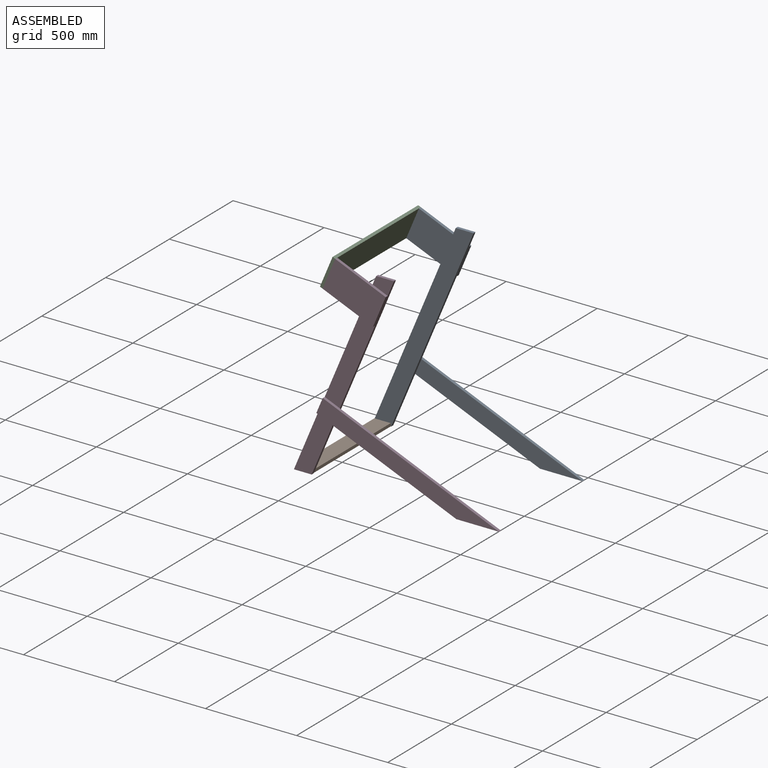
[diagram: assembled view]
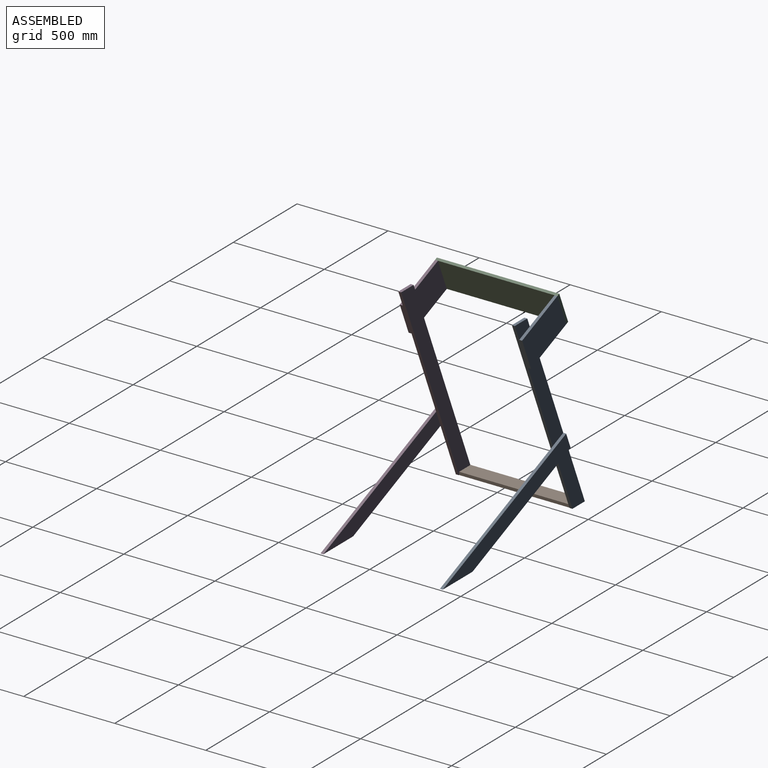
[diagram: assembled view, second angle]
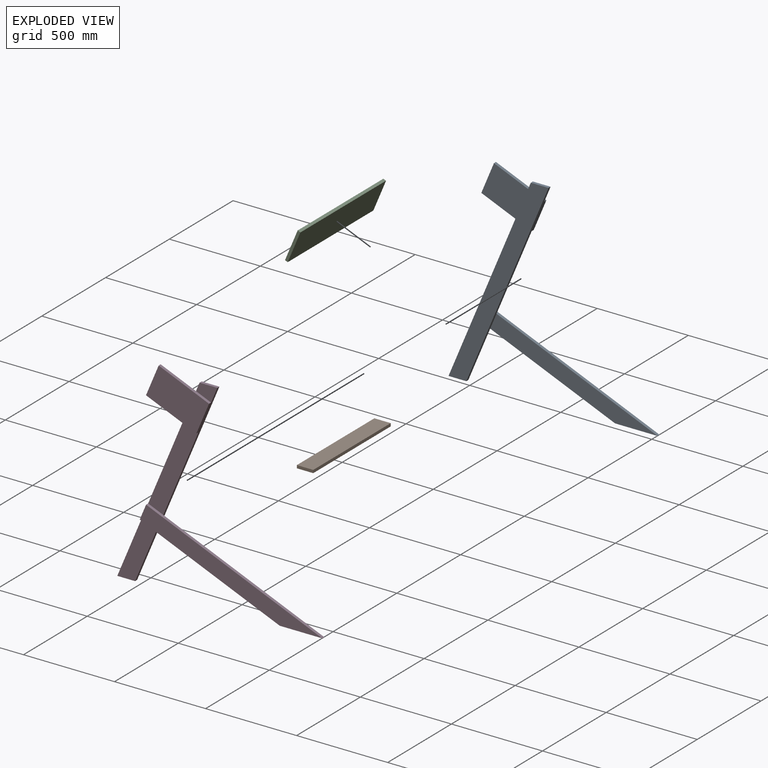
[diagram: exploded view]
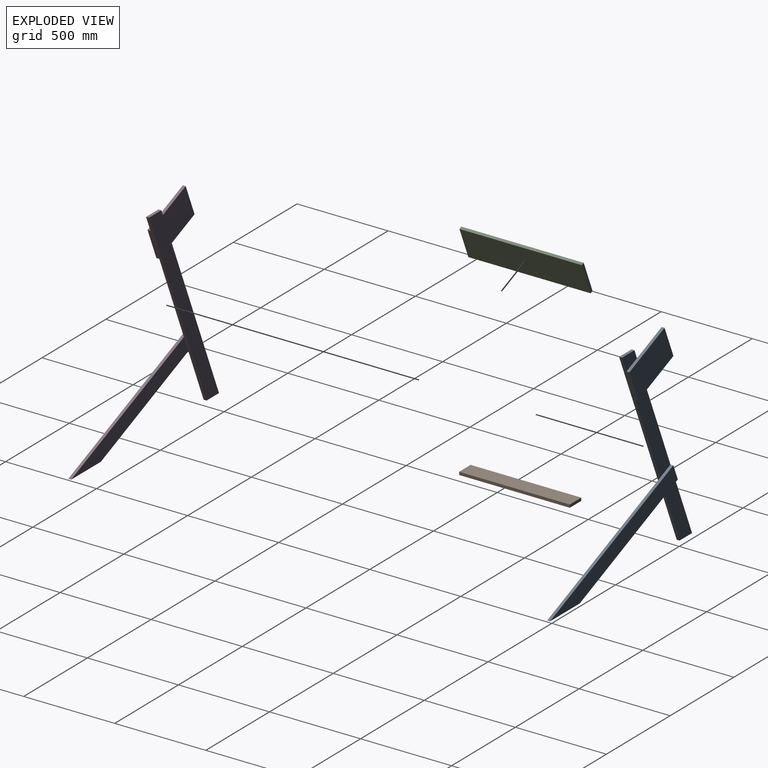
[diagram: exploded view, second angle]
ASSEMBLY  parts=4 mates=3
PART A: 18 faces, bbox 1136.8x32x1113.8 mm
  f0: plane 117.31x81.94mm, normal (0,1,0), area 6300mm2, adj f3,f4,f6,f14
  f1: plane 496.76x276.3mm, normal (0,1,0), area 45074.1mm2, adj f4,f6,f9,f16
  f2: plane 321.67x217.59mm, normal (0,1,0), area 29687.5mm2, adj f4,f5,f6,f10
  f3: plane 97.56x16mm, normal (0,0,1), area 1560.9mm2, adj f0,f4,f6,f7
  f4: plane 1080x451.77mm, normal (-0.92,0,0.39), area 20170.9mm2, adj f0,f1,f2,f3,f5,f7,f9,f10
  f5: plane 97.56x16mm, normal (0,0,-1), area 1560.9mm2, adj f2,f4,f6,f7
  f6: plane 1080x451.77mm, normal (0.92,0,-0.39), area 21610.9mm2, adj f0,f1,f2,f3,f5,f7,f8,f14
  f7: plane 1080x549.33mm, normal (0,-1,0), area 105361.5mm2, adj f3,f4,f5,f6
  f8: plane 919.18x369.97mm, normal (0,-1,0), area 76602mm2, adj f6,f9,f10,f11
  f9: plane 967.47x404.7mm, normal (0.39,0,0.92), area 16779.3mm2, adj f1,f4,f8,f11,f12
  f10: plane 768.99x321.67mm, normal (-0.39,0,-0.92), area 13336.9mm2, adj f2,f4,f8,f11,f12
  f11: plane 233.22x16mm, normal (0,0,-1), area 3731.5mm2, adj f8,f9,f10,f12
  f12: plane 1002.21x404.7mm, normal (0,1,0), area 84702mm2, adj f4,f9,f10,f11
  f13: plane 263.2x247.1mm, normal (0,-1,0), area 37800mm2, adj f4,f14,f15,f16
  f14: plane 276.76x115.77mm, normal (0.39,0,0.92), area 4800mm2, adj f0,f6,f13,f15,f17
  f15: plane 166.06x69.46mm, normal (-0.92,0,0.39), area 2880mm2, adj f13,f14,f16,f17
  f16: plane 276.76x115.77mm, normal (-0.39,0,-0.92), area 4800mm2, adj f1,f6,f13,f15,f17
  f17: plane 346.22x281.83mm, normal (0,1,0), area 54000mm2, adj f6,f14,f15,f16
PART B: 6 faces, bbox 90x608x16 mm
  f0: plane 608x16mm, normal (1,0,0), area 9728mm2, adj f1,f3,f4,f5
  f1: plane 608x90mm, normal (0,0,-1), area 54720mm2, adj f0,f2,f4,f5
  f2: plane 608x16mm, normal (-1,0,0), area 9728mm2, adj f1,f3,f4,f5
  f3: plane 608x90mm, normal (0,0,1), area 54720mm2, adj f0,f2,f4,f5
  f4: plane 90x16mm, normal (0,1,0), area 1440mm2, adj f0,f1,f2,f3
  f5: plane 90x16mm, normal (0,-1,0), area 1440mm2, adj f0,f1,f2,f3
PART C: 6 faces, bbox 180x672x16 mm
  f0: plane 672x16mm, normal (1,0,0), area 10752mm2, adj f1,f3,f4,f5
  f1: plane 180x16mm, normal (0,1,0), area 2880mm2, adj f0,f2,f4,f5
  f2: plane 672x16mm, normal (-1,0,0), area 10752mm2, adj f1,f3,f4,f5
  f3: plane 180x16mm, normal (0,-1,0), area 2880mm2, adj f0,f2,f4,f5
  f4: plane 672x180mm, normal (0,0,1), area 120960mm2, adj f0,f1,f2,f3
  f5: plane 672x180mm, normal (0,0,-1), area 120960mm2, adj f0,f1,f2,f3
PART D: 18 faces, bbox 1136.8x32x1113.8 mm
  f0: plane 117.31x81.94mm, normal (0,-1,0), area 6300mm2, adj f3,f4,f6,f14
  f1: plane 496.76x276.3mm, normal (0,-1,0), area 45074.1mm2, adj f4,f6,f9,f16
  f2: plane 321.67x217.59mm, normal (0,-1,0), area 29687.5mm2, adj f4,f5,f6,f10
  f3: plane 97.56x16mm, normal (0,0,1), area 1560.9mm2, adj f0,f4,f6,f7
  f4: plane 1080x451.77mm, normal (-0.92,0,0.39), area 20170.9mm2, adj f0,f1,f2,f3,f5,f7,f9,f10
  f5: plane 97.56x16mm, normal (0,0,-1), area 1560.9mm2, adj f2,f4,f6,f7
  f6: plane 1080x451.77mm, normal (0.92,0,-0.39), area 21610.9mm2, adj f0,f1,f2,f3,f5,f7,f8,f14
  f7: plane 1080x549.33mm, normal (0,1,0), area 105361.5mm2, adj f3,f4,f5,f6
  f8: plane 919.18x369.97mm, normal (0,1,0), area 76602mm2, adj f6,f9,f10,f11
  f9: plane 967.47x404.7mm, normal (0.39,0,0.92), area 16779.3mm2, adj f1,f4,f8,f11,f12
  f10: plane 768.99x321.67mm, normal (-0.39,0,-0.92), area 13336.9mm2, adj f2,f4,f8,f11,f12
  f11: plane 233.22x16mm, normal (0,0,-1), area 3731.5mm2, adj f8,f9,f10,f12
  f12: plane 1002.21x404.7mm, normal (0,-1,0), area 84702mm2, adj f4,f9,f10,f11
  f13: plane 263.2x247.1mm, normal (0,1,0), area 37800mm2, adj f4,f14,f15,f16
  f14: plane 276.76x115.77mm, normal (0.39,0,0.92), area 4800mm2, adj f0,f6,f13,f15,f17
  f15: plane 166.06x69.46mm, normal (-0.92,0,0.39), area 2880mm2, adj f13,f14,f16,f17
  f16: plane 276.76x115.77mm, normal (-0.39,0,-0.92), area 4800mm2, adj f1,f6,f13,f15,f17
  f17: plane 346.22x281.83mm, normal (0,-1,0), area 54000mm2, adj f6,f14,f15,f16
PLACE A t=(47.15,393,0)mm
PLACE B t=(-885.55,-199,0)mm
PLACE C rot(axis=(0,-1,0),67.3deg) t=(-1332.29,38.33,1192.59)mm
PLACE D t=(47.15,-215,0)mm
MATE planar D.f7 <-> B.f5  axis (0,1,0) through (-1603.53,-215,0)mm
MATE planar B.f4 <-> A.f7  axis (0,1,0) through (-1598.53,393,0)mm
MATE planar C.f5 <-> D.f15  axis (0.92,0,-0.39) through (-1434.7,-247,947.77)mm
